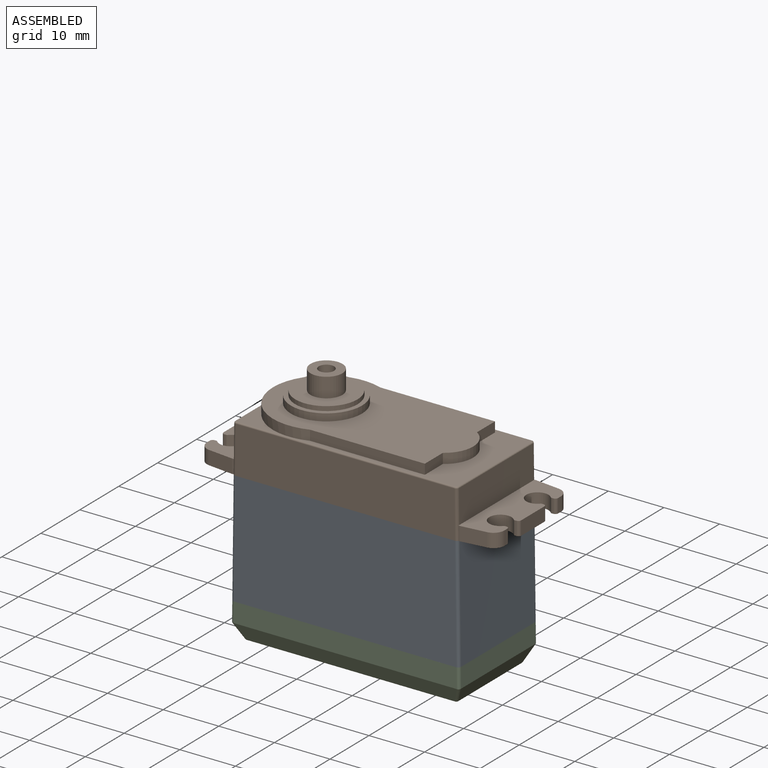
[diagram: assembled view]
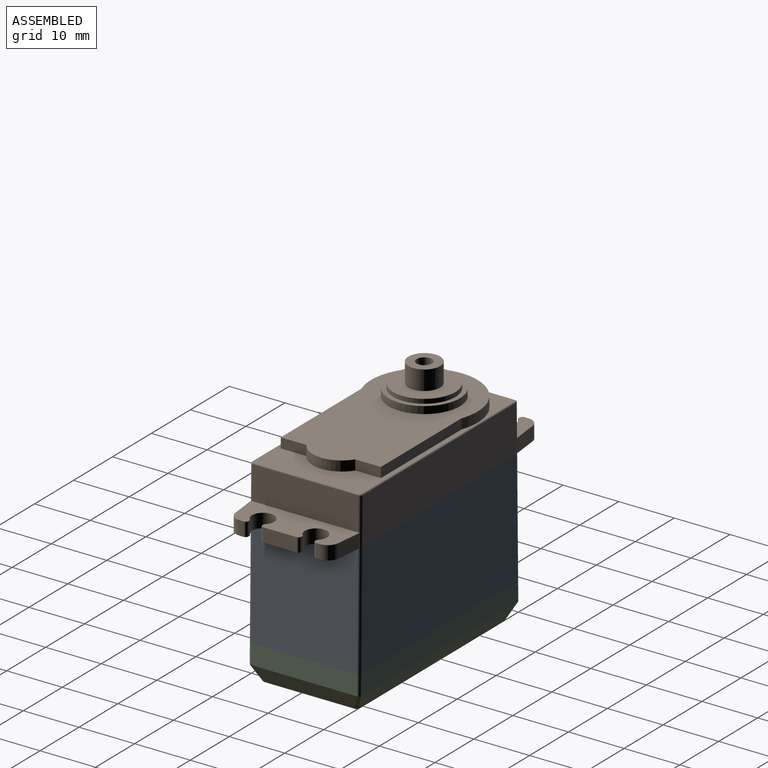
[diagram: assembled view, second angle]
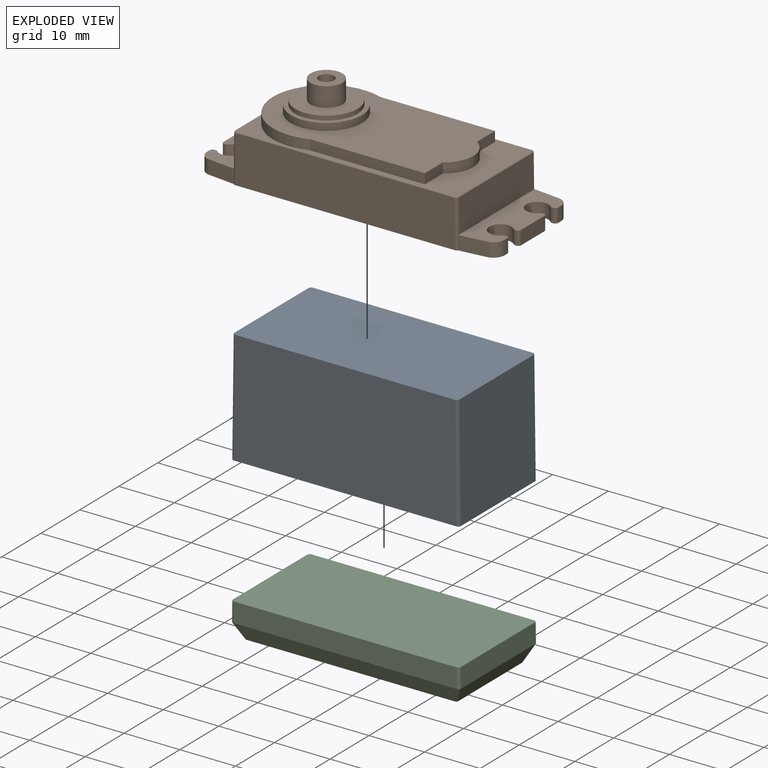
[diagram: exploded view]
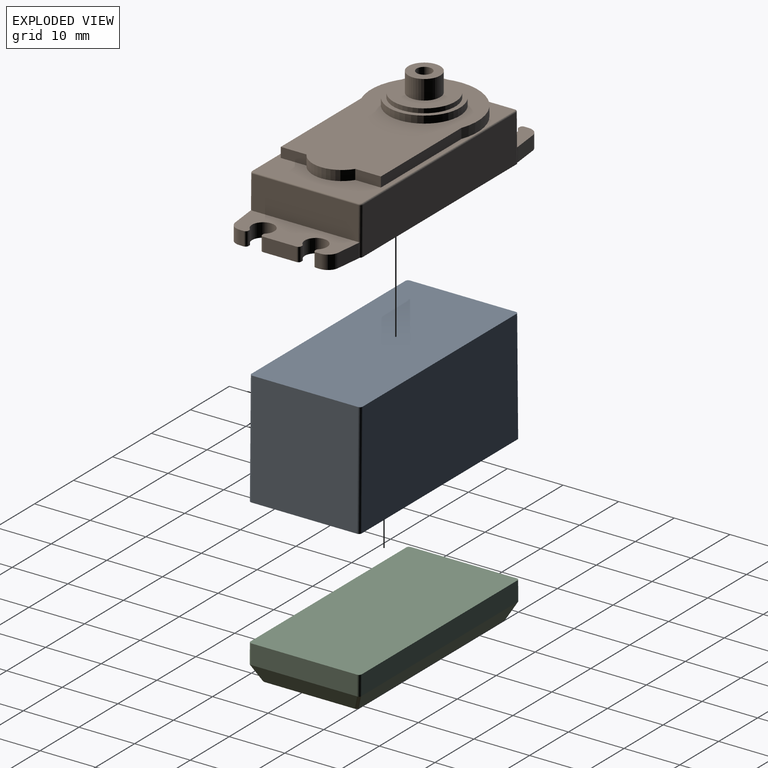
[diagram: exploded view, second angle]
ASSEMBLY  parts=3 mates=2
PART A: 10 faces, bbox 41x20x20.5 mm
  f0: plane 20.5x19mm, normal (-1,0,0.01), area 389.5mm2, adj f1,f3,f7,f9
  f1: plane 41x20mm, normal (0,0,-1), area 819.8mm2, adj f0,f2,f4,f5,f6,f7,f8,f9
  f2: plane 20.5x19mm, normal (1,0,0.01), area 389.5mm2, adj f1,f3,f6,f8
  f3: plane 40.5x20mm, normal (0,0,1), area 809.8mm2, adj f0,f2,f4,f5,f6,f7,f8,f9
  f4: plane 40x20.5mm, normal (0,-1,0), area 814.9mm2, adj f1,f3,f8,f9
  f5: plane 40x20.5mm, normal (0,1,0), area 814.9mm2, adj f1,f3,f6,f7
  f6: cylinder r=0.5mm len=20.51mm, axis (-0.01,0,1), area 16.1mm2, adj f1,f2,f3,f5
  f7: cylinder r=0.5mm len=20.51mm, axis (-0.01,0,-1), area 16.1mm2, adj f0,f1,f3,f5
  f8: cylinder r=0.5mm len=20.51mm, axis (0.01,0,-1), area 16.1mm2, adj f1,f2,f3,f4
  f9: cylinder r=0.5mm len=20.51mm, axis (0.01,0,1), area 16.1mm2, adj f0,f1,f3,f4
PART B: 83 faces, bbox 53.5x20x16.1 mm
  f0: plane 39.81x19.52mm, normal (0,0,1), area 181.7mm2, adj f54,f55,f56,f57,f58,f59,f73,f74
  f1: plane 19x5.95mm, normal (1,0,0.01), area 113.1mm2, adj f32,f69,f71,f79
  f2: plane 19x5.96mm, normal (-1,0,0.01), area 113.1mm2, adj f27,f70,f72,f74,f76,f78
  f3: plane 53.5x20mm, normal (0,0,-1), area 994.7mm2, adj f4,f5,f6,f7,f8,f9,f10,f11
  f4: plane 39.5x8.45mm, normal (0,-1,0), area 332.9mm2, adj f3,f71,f72,f75
  f5: plane 39.5x8.45mm, normal (0,1,0), area 332.9mm2, adj f3,f69,f70,f82
  f6: plane 4.48x2.5mm, normal (-0.11,-0.99,0), area 11.3mm2, adj f3,f7,f27,f28
  f7: cylinder r=2mm len=2.5mm, axis (0,0,-1), area 7.3mm2, adj f3,f6,f8,f27
  f8: plane 2.5x0.75mm, normal (-1,0,0), area 1.9mm2, adj f3,f7,f9,f27
  f9: cylinder r=0.5mm len=2.5mm, axis (0,0,-1), area 2mm2, adj f3,f8,f10,f27
  f10: plane 2.5x0.32mm, normal (0,1,0), area 0.8mm2, adj f3,f9,f11,f27
  f11: cylinder r=0.25mm len=2.5mm, axis (0,0,-1), area 0.5mm2, adj f3,f10,f12,f27
  f12: cylinder r=2mm len=4mm, axis (0,0,-1), area 24.1mm2, adj f3,f11,f13,f27
  f13: cylinder r=0.25mm len=2.5mm, axis (0,0,-1), area 0.5mm2, adj f3,f12,f14,f27
  f14: plane 2.5x0.32mm, normal (0,-1,0), area 0.8mm2, adj f3,f13,f15,f27
  f15: cylinder r=0.5mm len=2.5mm, axis (0,0,-1), area 2mm2, adj f3,f14,f16,f27
  f16: plane 6x2.5mm, normal (-1,0,0), area 15mm2, adj f3,f15,f17,f27
  f17: cylinder r=0.5mm len=2.5mm, axis (0,0,-1), area 2mm2, adj f3,f16,f18,f27
  f18: plane 2.5x0.32mm, normal (0,1,0), area 0.8mm2, adj f3,f17,f19,f27
  f19: cylinder r=0.25mm len=2.5mm, axis (0,0,-1), area 0.5mm2, adj f3,f18,f20,f27
  f20: cylinder r=2mm len=4mm, axis (0,0,-1), area 24.1mm2, adj f3,f19,f21,f27
  f21: cylinder r=0.25mm len=2.5mm, axis (0,0,-1), area 0.5mm2, adj f3,f20,f22,f27
  f22: plane 2.5x0.32mm, normal (0,-1,0), area 0.8mm2, adj f3,f21,f23,f27
  f23: cylinder r=0.5mm len=2.5mm, axis (0,0,-1), area 2mm2, adj f3,f22,f24,f27
  f24: plane 2.5x0.75mm, normal (-1,0,0), area 1.9mm2, adj f3,f23,f25,f27
  f25: cylinder r=2mm len=2.5mm, axis (0,0,-1), area 7.3mm2, adj f3,f24,f26,f27
  f26: plane 4.48x2.5mm, normal (-0.11,0.99,0), area 11.3mm2, adj f3,f25,f27,f29
  f27: plane 19.5x6.6mm, normal (0,0,1), area 93mm2, adj f2,f6,f7,f8,f9,f10,f11,f12
  f28: plane 2.5x0.35mm, normal (0,-1,0), area 0.8mm2, adj f3,f6,f27,f72
  f29: plane 2.5x0.35mm, normal (0,1,0), area 0.8mm2, adj f3,f26,f27,f70
  f30: plane 2.5x0.35mm, normal (0,1,0), area 0.8mm2, adj f3,f32,f49,f69
  f31: plane 2.5x0.35mm, normal (0,-1,0), area 0.8mm2, adj f3,f32,f50,f71
  f32: plane 19.5x6.6mm, normal (0,0,1), area 93mm2, adj f1,f30,f31,f33,f34,f35,f36,f37
  f33: plane 2.5x0.32mm, normal (0,1,0), area 0.8mm2, adj f3,f32,f34,f53
  f34: cylinder r=0.25mm len=2.5mm, axis (0,0,-1), area 0.5mm2, adj f3,f32,f33,f35
  f35: cylinder r=2mm len=4mm, axis (0,0,-1), area 24.1mm2, adj f3,f32,f34,f36
  f36: cylinder r=0.25mm len=2.5mm, axis (0,0,-1), area 0.5mm2, adj f3,f32,f35,f37
  f37: plane 2.5x0.32mm, normal (0,-1,0), area 0.8mm2, adj f3,f32,f36,f38
  f38: cylinder r=0.5mm len=2.5mm, axis (0,0,-1), area 2mm2, adj f3,f32,f37,f39
  f39: plane 6x2.5mm, normal (1,0,0), area 15mm2, adj f3,f32,f38,f40
  f40: cylinder r=0.5mm len=2.5mm, axis (0,0,-1), area 2mm2, adj f3,f32,f39,f41
  f41: plane 2.5x0.32mm, normal (0,1,0), area 0.8mm2, adj f3,f32,f40,f42
  f42: cylinder r=0.25mm len=2.5mm, axis (0,0,-1), area 0.5mm2, adj f3,f32,f41,f43
  f43: cylinder r=2mm len=4mm, axis (0,0,-1), area 24.1mm2, adj f3,f32,f42,f44
  f44: cylinder r=0.25mm len=2.5mm, axis (0,0,-1), area 0.5mm2, adj f3,f32,f43,f45
  f45: plane 2.5x0.32mm, normal (0,-1,0), area 0.8mm2, adj f3,f32,f44,f46
  f46: cylinder r=0.5mm len=2.5mm, axis (0,0,-1), area 2mm2, adj f3,f32,f45,f47
  f47: plane 2.5x0.75mm, normal (1,0,0), area 1.9mm2, adj f3,f32,f46,f48
  f48: cylinder r=2mm len=2.5mm, axis (0,0,-1), area 7.3mm2, adj f3,f32,f47,f49
  f49: plane 4.48x2.5mm, normal (0.11,0.99,0), area 11.3mm2, adj f3,f30,f32,f48
  f50: plane 4.48x2.5mm, normal (0.11,-0.99,0), area 11.3mm2, adj f3,f31,f32,f51
  f51: cylinder r=2mm len=2.5mm, axis (0,0,-1), area 7.3mm2, adj f3,f32,f50,f52
  f52: plane 2.5x0.75mm, normal (1,0,0), area 1.9mm2, adj f3,f32,f51,f53
  f53: cylinder r=0.5mm len=2.5mm, axis (0,0,-1), area 2mm2, adj f3,f32,f33,f52
  f54: plane 4.62x1.8mm, normal (1,0,0), area 8.3mm2, adj f0,f55,f59,f60
  f55: cylinder r=5.2mm len=8.76mm, axis (0,0,-1), area 18.8mm2, adj f0,f54,f56,f60
  f56: plane 4.62x1.8mm, normal (1,0,0), area 8.3mm2, adj f0,f55,f57,f60
  f57: plane 20.66x1.8mm, normal (0,1,0), area 37.2mm2, adj f0,f56,f58,f60
  f58: cylinder r=9.6mm len=19.2mm, axis (0,0,-1), area 66.6mm2, adj f0,f57,f59,f60,f76
  f59: plane 20.66x1.8mm, normal (0,-1,0), area 37.2mm2, adj f0,f54,f58,f60
  f60: plane 36x19.2mm, normal (0,0,1), area 465.6mm2, adj f54,f55,f56,f57,f58,f59,f61
  f61: cylinder r=6.4mm len=12.8mm, axis (0,0,-1), area 52.3mm2, adj f60,f62
  f62: plane 12.8x12.8mm, normal (0,0,1), area 30.2mm2, adj f61,f63
  f63: cylinder r=5.6mm len=11.2mm, axis (0,0,-1), area 28.1mm2, adj f62,f64
  f64: plane 11.2x11.2mm, normal (0,0,1), area 72.6mm2, adj f63,f65
  f65: cylinder r=2.88mm len=5.75mm, axis (0,0,-1), area 63.2mm2, adj f64,f66
  f66: plane 5.75x5.75mm, normal (0,0,1), area 20mm2, adj f65,f67
  f67: cylinder r=1.38mm len=5.6mm, axis (0,0,-1), area 48.4mm2, adj f66,f68
  f68: plane 2.75x2.75mm, normal (0,0,1), area 5.9mm2, adj f67
  f69: cylinder r=0.5mm len=8.46mm, axis (-0.01,0,1), area 6mm2, adj f1,f3,f5,f30,f32,f81
  f70: cylinder r=0.5mm len=8.46mm, axis (-0.01,0,-1), area 6mm2, adj f2,f3,f5,f27,f29,f80
  f71: cylinder r=0.5mm len=8.46mm, axis (0.01,0,-1), area 6mm2, adj f1,f3,f4,f31,f32,f77
  f72: cylinder r=0.5mm len=8.46mm, axis (0.01,0,1), area 6mm2, adj f2,f3,f4,f27,f28,f73
  f73: bspline ~0.5x0.5mm, area 0.3mm2, adj f0,f72,f74,f75
  f74: cylinder r=0.25mm len=8.49mm, axis (0,1,0), area 3.3mm2, adj f0,f2,f73,f76
  f75: cylinder r=0.25mm len=39.29mm, axis (1,0,0), area 15.4mm2, adj f0,f4,f73,f77
  f76: bspline ~2.02x0.25mm, area 0.7mm2, adj f2,f58,f74,f78
  f77: bspline ~0.5x0.5mm, area 0.3mm2, adj f0,f71,f75,f79
  f78: cylinder r=0.25mm len=8.49mm, axis (0,1,0), area 3.3mm2, adj f0,f2,f76,f80
  f79: cylinder r=0.25mm len=19mm, axis (0,1,0), area 7.4mm2, adj f0,f1,f77,f81
  f80: bspline ~0.5x0.5mm, area 0.3mm2, adj f0,f70,f78,f82
  f81: bspline ~0.5x0.5mm, area 0.3mm2, adj f0,f69,f79,f82
  f82: cylinder r=0.25mm len=39.29mm, axis (-1,0,0), area 15.4mm2, adj f0,f5,f80,f81
PART C: 26 faces, bbox 41.1x20x6.5 mm
  f0: plane 41x20mm, normal (0,0,1), area 819.8mm2, adj f1,f3,f4,f5,f11,f13,f14,f16
  f1: plane 19x3.5mm, normal (-1,0,0.01), area 66.5mm2, adj f0,f8,f11,f13
  f2: plane 37.85x16.76mm, normal (0,0,-1), area 634.3mm2, adj f18,f19,f20,f21,f22,f23,f24,f25
  f3: plane 19x3.5mm, normal (1,0,0.01), area 66.5mm2, adj f0,f7,f14,f16
  f4: plane 40.09x3.52mm, normal (0,-1,0), area 140.9mm2, adj f0,f6,f11,f14
  f5: plane 40.09x3.52mm, normal (0,1,0), area 140.9mm2, adj f0,f9,f13,f16
  f6: plane 40.17x2.84mm, normal (0,-0.9,-0.44), area 122.8mm2, adj f4,f10,f11,f14,f15,f18
  f7: plane 19.12x2.86mm, normal (0.9,0,-0.44), area 56.4mm2, adj f3,f14,f15,f16,f17,f22
  f8: plane 19.12x2.86mm, normal (-0.9,0,-0.44), area 56.4mm2, adj f1,f10,f11,f12,f13,f21
  f9: plane 40.17x2.84mm, normal (0,0.9,-0.44), area 122.8mm2, adj f5,f12,f13,f16,f17,f25
  f10: cylinder r=0.5mm len=2.94mm, axis (-0.4,-0.4,0.82), area 2.4mm2, adj f6,f8,f11,f19
  f11: cylinder r=0.5mm len=3.56mm, axis (0.01,0,1), area 2.8mm2, adj f0,f1,f4,f6,f8,f10
  f12: cylinder r=0.5mm len=2.94mm, axis (0.4,-0.4,-0.82), area 2.4mm2, adj f8,f9,f13,f23
  f13: cylinder r=0.5mm len=3.56mm, axis (-0.01,0,-1), area 2.8mm2, adj f0,f1,f5,f8,f9,f12
  f14: cylinder r=0.5mm len=3.56mm, axis (0.01,0,-1), area 2.8mm2, adj f0,f3,f4,f6,f7,f15
  f15: cylinder r=0.5mm len=2.94mm, axis (-0.4,0.4,-0.82), area 2.4mm2, adj f6,f7,f14,f20
  f16: cylinder r=0.5mm len=3.56mm, axis (-0.01,0,1), area 2.8mm2, adj f0,f3,f5,f7,f9,f17
  f17: cylinder r=0.5mm len=2.94mm, axis (0.4,0.4,0.82), area 2.4mm2, adj f7,f9,f16,f24
  f18: cylinder r=0.25mm len=37.4mm, axis (1,0,0), area 10.4mm2, adj f2,f6,f19,f20
  f19: bspline ~0.45x0.45mm, area 0.1mm2, adj f2,f10,f18,f21
  f20: bspline ~0.45x0.45mm, area 0.1mm2, adj f2,f15,f18,f22
  f21: cylinder r=0.25mm len=16.31mm, axis (0,-1,0), area 4.6mm2, adj f2,f8,f19,f23
  f22: cylinder r=0.25mm len=16.31mm, axis (0,1,0), area 4.6mm2, adj f2,f7,f20,f24
  f23: bspline ~0.45x0.45mm, area 0.1mm2, adj f2,f12,f21,f25
  f24: bspline ~0.45x0.45mm, area 0.1mm2, adj f2,f17,f22,f25
  f25: cylinder r=0.25mm len=37.4mm, axis (1,0,0), area 10.4mm2, adj f2,f9,f23,f24
PLACE A t=(0.62,-12.73,4.12)mm
PLACE B t=(0.62,-12.73,4.12)mm fixed
PLACE C t=(0.62,-12.73,4.12)mm
MATE fastened A.f1 <-> C.f0  axis (0,0,-1) through (0.62,-12.73,-16.38)mm
MATE fastened A.f3 <-> B.f3  axis (0,0,1) through (0.62,-12.73,4.12)mm
